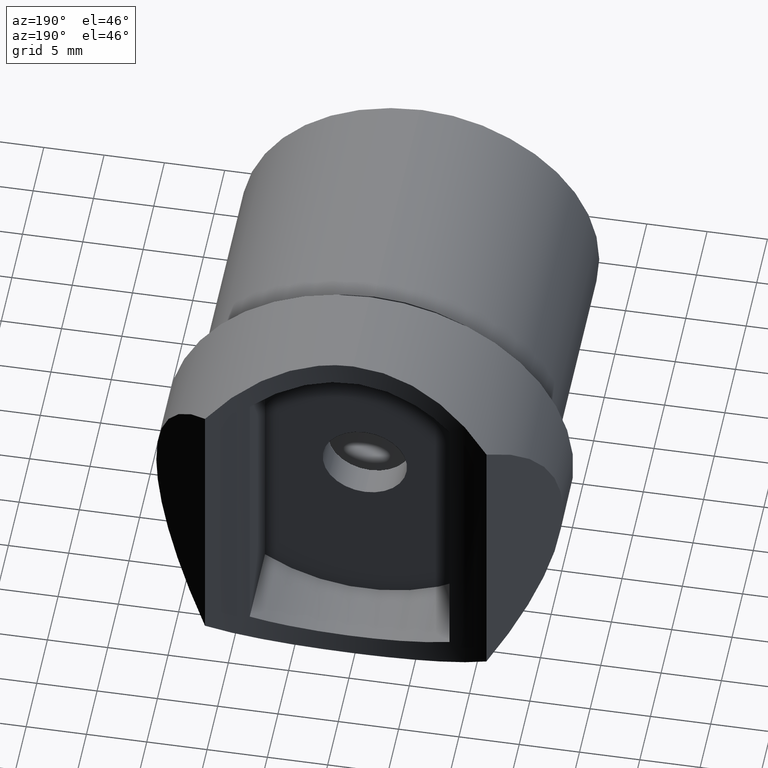
[diagram: clean part render]
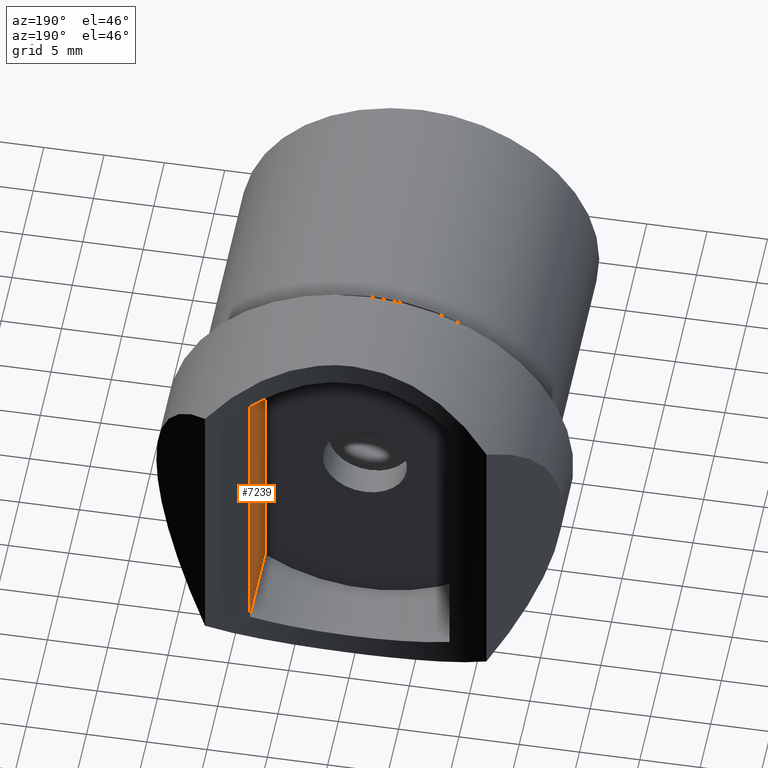
[diagram: same view with one face highlighted and labeled with its STEP entity id]
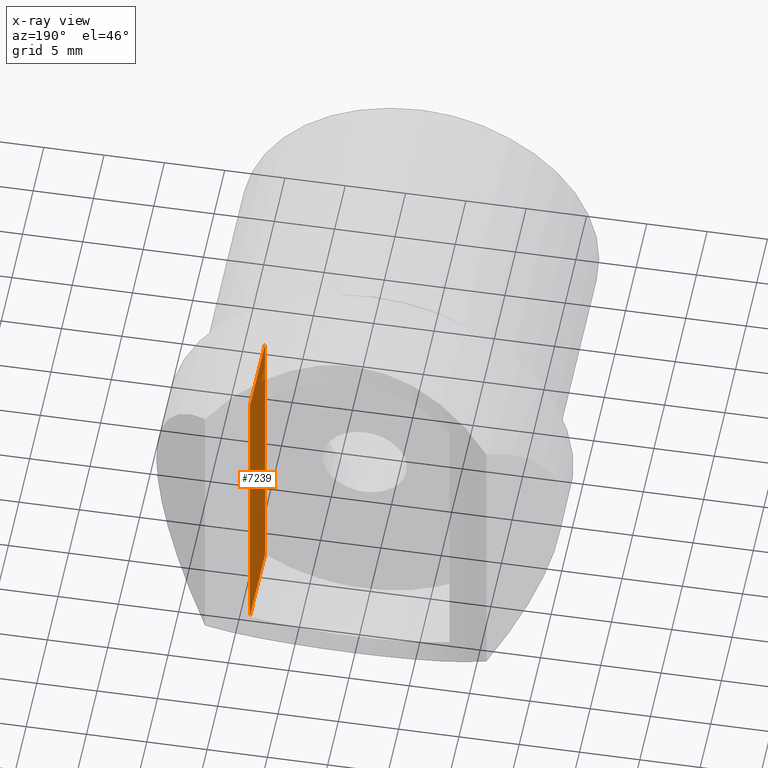
[diagram: x-ray of the same camera — body ghosted, the highlighted face saturated]
A machine part, auxiliary view. The second image highlights one B-rep face of the part: STEP entity #7239.
The next image is the same camera in x-ray: the body ghosted, the highlighted face saturated — about 4% of this face is hidden behind the body in this view.
In plain terms, the highlighted planar face has unit normal (1, 0, -0).
Its self-contained STEP definition (entity closure, byte-faithful):
#69 = CARTESIAN_POINT ( 'NONE',  ( 8.281050529979902200, 9.684257582148710200, 12.32666630196175800 ) ) ;
#273 = VERTEX_POINT ( 'NONE', #69 ) ;
#739 = CARTESIAN_POINT ( 'NONE',  ( 8.281050529979900400, 2.500000000000002200, -12.32666630196175800 ) ) ;
#1136 = EDGE_CURVE ( 'NONE', #2749, #11777, #6809, .T. ) ;
#1349 = VECTOR ( 'NONE', #3193, 1000.000000000000000 ) ;
#1378 = VERTEX_POINT ( 'NONE', #4140 ) ;
#1719 = CARTESIAN_POINT ( 'NONE',  ( 8.281050529979909300, 2.500000000000002200, 12.32666630196175800 ) ) ;
#1887 = CARTESIAN_POINT ( 'NONE',  ( 8.281050529979916400, -34.00578173664474200, 12.32666630196175800 ) ) ;
#2005 = PLANE ( 'NONE',  #2143 ) ;
#2071 = ORIENTED_EDGE ( 'NONE', *, *, #6326, .F. ) ;
#2087 = CARTESIAN_POINT ( 'NONE',  ( 8.281050529979916400, -34.00578173664474200, 12.32666630196176200 ) ) ;
#2143 = AXIS2_PLACEMENT_3D ( 'NONE', #2087, #8766, #3033 ) ;
#2247 = LINE ( 'NONE', #5268, #9866 ) ;
#2749 = VERTEX_POINT ( 'NONE', #739 ) ;
#2893 = CARTESIAN_POINT ( 'NONE',  ( 8.281050529979904000, 2.500000000000002200, 12.32666630196176200 ) ) ;
#3033 = DIRECTION ( 'NONE',  ( -3.195227344287424400E-016, 1.000000000000000000, 0.0000000000000000000 ) ) ;
#3193 = DIRECTION ( 'NONE',  ( -0.0000000000000000000, -0.0000000000000000000, 1.000000000000000000 ) ) ;
#3337 = EDGE_LOOP ( 'NONE', ( #3355, #8462, #9873, #2071 ) ) ;
#3355 = ORIENTED_EDGE ( 'NONE', *, *, #4839, .F. ) ;
#3466 = DIRECTION ( 'NONE',  ( -3.195227344287424400E-016, 1.000000000000000000, -0.0000000000000000000 ) ) ;
#4140 = CARTESIAN_POINT ( 'NONE',  ( 8.281050529979898700, 9.684257582148706700, -12.32666630196176000 ) ) ;
#4143 = DIRECTION ( 'NONE',  ( 1.407293288778921700E-016, -0.0000000000000000000, 1.000000000000000000 ) ) ;
#4210 = LINE ( 'NONE', #8925, #1349 ) ;
#4839 = EDGE_CURVE ( 'NONE', #2749, #1378, #2247, .T. ) ;
#5268 = CARTESIAN_POINT ( 'NONE',  ( 8.281050529979912900, -34.00578173664474200, -12.32666630196176000 ) ) ;
#5839 = FACE_OUTER_BOUND ( 'NONE', #3337, .T. ) ;
#6326 = EDGE_CURVE ( 'NONE', #1378, #273, #4210, .T. ) ;
#6809 = LINE ( 'NONE', #2893, #11578 ) ;
#6862 = LINE ( 'NONE', #1887, #11637 ) ;
#7239 = ADVANCED_FACE ( 'NONE', ( #5839 ), #2005, .F. ) ;
#8462 = ORIENTED_EDGE ( 'NONE', *, *, #1136, .T. ) ;
#8766 = DIRECTION ( 'NONE',  ( 1.000000000000000000, 3.195227344287424400E-016, -1.407293288778921700E-016 ) ) ;
#8925 = CARTESIAN_POINT ( 'NONE',  ( 8.281050529979895100, 9.684257582148722700, -16.85000000000000100 ) ) ;
#9866 = VECTOR ( 'NONE', #10158, 1000.000000000000000 ) ;
#9873 = ORIENTED_EDGE ( 'NONE', *, *, #10658, .T. ) ;
#10158 = DIRECTION ( 'NONE',  ( -3.195227344287424400E-016, 1.000000000000000000, -0.0000000000000000000 ) ) ;
#10658 = EDGE_CURVE ( 'NONE', #11777, #273, #6862, .T. ) ;
#11578 = VECTOR ( 'NONE', #4143, 1000.000000000000000 ) ;
#11637 = VECTOR ( 'NONE', #3466, 1000.000000000000000 ) ;
#11777 = VERTEX_POINT ( 'NONE', #1719 ) ;